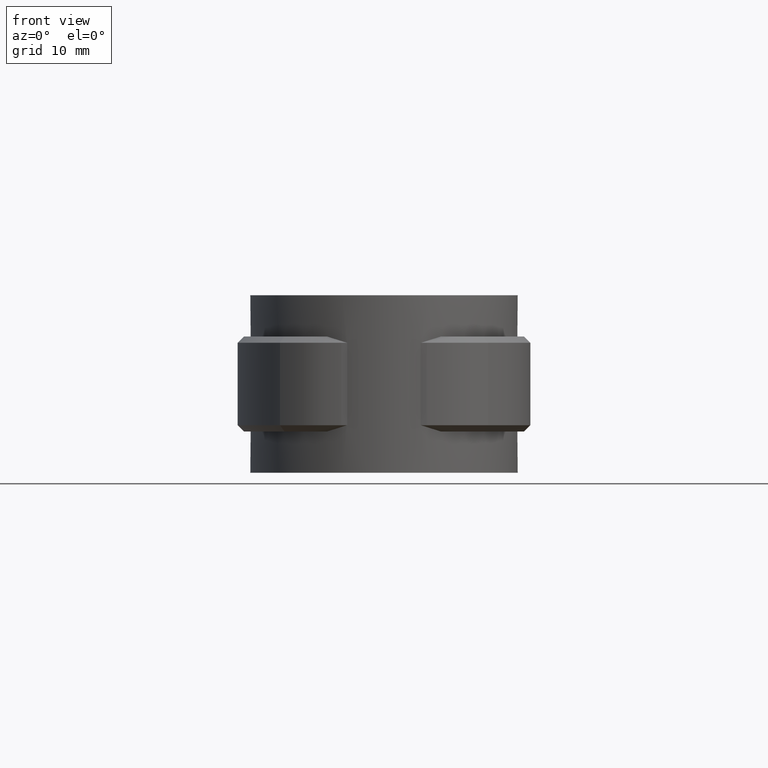
[diagram: clean part render]
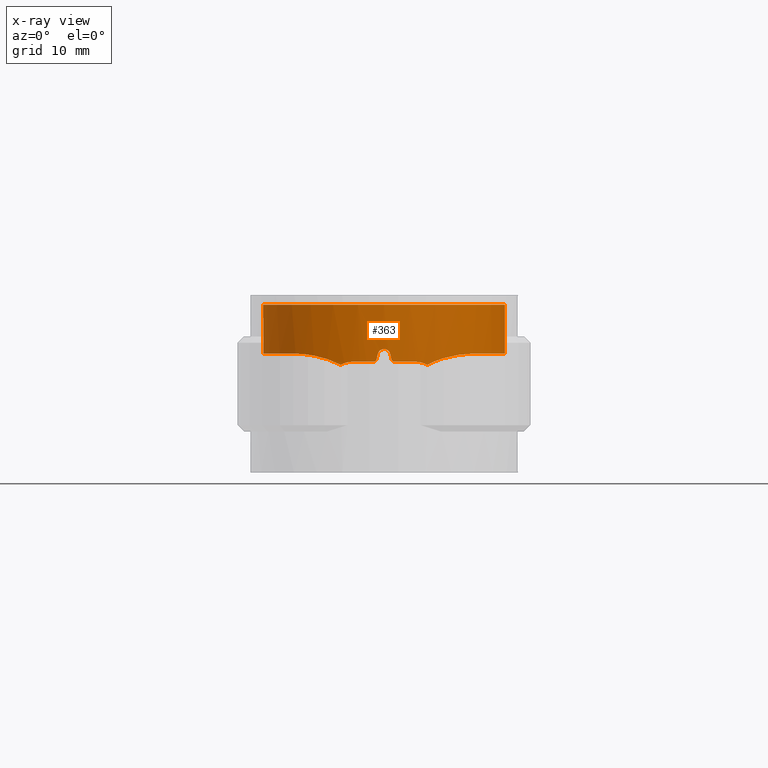
[diagram: x-ray — body ghosted, one internal face saturated and labeled with its STEP entity id]
A machine part, front view, then the same camera in x-ray: the body is ghosted and one INTERNAL B-rep face — a face not visible from any outside direction — is saturated and labeled: STEP entity #363.
In plain terms, the highlighted cylindrical surface (partial cylindrical patch) has radius 19.1 mm, axis along (0, 0, -1).
Its self-contained STEP definition (entity closure, byte-faithful):
#363 = ADVANCED_FACE( '', ( #695 ), #696, .T. );
#695 = FACE_OUTER_BOUND( '', #1404, .T. );
#696 = CYLINDRICAL_SURFACE( '', #1405, 19.1000000000000 );
#1404 = EDGE_LOOP( '', ( #2629, #2630, #2631, #2632, #2633, #2634, #2635, #2636, #2637, #2638, #2639, #2640, #2641, #2642, #2643, #2644 ) );
#1405 = AXIS2_PLACEMENT_3D( '', #2645, #2646, #2647 );
#2629 = ORIENTED_EDGE( '', *, *, #6358, .F. );
#2630 = ORIENTED_EDGE( '', *, *, #6359, .F. );
#2631 = ORIENTED_EDGE( '', *, *, #6360, .F. );
#2632 = ORIENTED_EDGE( '', *, *, #6361, .F. );
#2633 = ORIENTED_EDGE( '', *, *, #6362, .F. );
#2634 = ORIENTED_EDGE( '', *, *, #6363, .T. );
#2635 = ORIENTED_EDGE( '', *, *, #6364, .F. );
#2636 = ORIENTED_EDGE( '', *, *, #6365, .F. );
#2637 = ORIENTED_EDGE( '', *, *, #6366, .F. );
#2638 = ORIENTED_EDGE( '', *, *, #6367, .F. );
#2639 = ORIENTED_EDGE( '', *, *, #6368, .F. );
#2640 = ORIENTED_EDGE( '', *, *, #6369, .F. );
#2641 = ORIENTED_EDGE( '', *, *, #6370, .F. );
#2642 = ORIENTED_EDGE( '', *, *, #6371, .F. );
#2643 = ORIENTED_EDGE( '', *, *, #6372, .F. );
#2644 = ORIENTED_EDGE( '', *, *, #6373, .F. );
#2645 = CARTESIAN_POINT( '', ( 0.000000000000000, 0.000000000000000, 0.000000000000000 ) );
#2646 = DIRECTION( '', ( 0.000000000000000, 0.000000000000000, -1.00000000000000 ) );
#2647 = DIRECTION( '', ( 1.00000000000000, -6.12303176911189E-017, 0.000000000000000 ) );
#6358 = EDGE_CURVE( '', #7281, #7282, #7283, .T. );
#6359 = EDGE_CURVE( '', #7284, #7281, #7285, .T. );
#6360 = EDGE_CURVE( '', #7286, #7284, #7287, .T. );
#6361 = EDGE_CURVE( '', #7288, #7286, #7289, .T. );
#6362 = EDGE_CURVE( '', #7290, #7288, #7291, .T. );
#6363 = EDGE_CURVE( '', #7290, #7292, #7293, .T. );
#6364 = EDGE_CURVE( '', #7294, #7292, #7295, .T. );
#6365 = EDGE_CURVE( '', #7296, #7294, #7297, .T. );
#6366 = EDGE_CURVE( '', #7298, #7296, #7299, .T. );
#6367 = EDGE_CURVE( '', #7300, #7298, #7301, .T. );
#6368 = EDGE_CURVE( '', #7302, #7300, #7303, .T. );
#6369 = EDGE_CURVE( '', #7304, #7302, #7305, .T. );
#6370 = EDGE_CURVE( '', #7306, #7304, #7307, .T. );
#6371 = EDGE_CURVE( '', #7308, #7306, #7309, .T. );
#6372 = EDGE_CURVE( '', #7310, #7308, #7311, .T. );
#6373 = EDGE_CURVE( '', #7282, #7310, #7312, .T. );
#7281 = VERTEX_POINT( '', #8817 );
#7282 = VERTEX_POINT( '', #8818 );
#7283 = B_SPLINE_CURVE_WITH_KNOTS( '', 3, ( #8819, #8820, #8821, #8822, #8823, #8824, #8825, #8826 ), .UNSPECIFIED., .F., .F., ( 4, 2, 2, 4 ), ( 4.71809707032661E-016, 0.000994489686253083, 0.00149173452937939, 0.00198897937250569 ), .UNSPECIFIED. );
#7284 = VERTEX_POINT( '', #8827 );
#7285 = B_SPLINE_CURVE_WITH_KNOTS( '', 3, ( #8828, #8829, #8830, #8831, #8832, #8833, #8834, #8835, #8836, #8837, #8838, #8839 ), .UNSPECIFIED., .F., .F., ( 4, 2, 2, 2, 2, 4 ), ( 3.07393783112962E-017, 0.00223644603303480, 0.00335466904955218, 0.00447289206606957, 0.00670933809910433, 0.00894578413213910 ), .UNSPECIFIED. );
#7286 = VERTEX_POINT( '', #8840 );
#7287 = B_SPLINE_CURVE_WITH_KNOTS( '', 3, ( #8841, #8842, #8843, #8844, #8845, #8846, #8847, #8848, #8849, #8850, #8851, #8852, #8853, #8854, #8855, #8856, #8857, #8858, #8859, #8860, #8861, #8862, #8863, #8864, #8865, #8866, #8867, #8868, #8869, #8870, #8871, #8872, #8873, #8874, #8875, #8876 ), .UNSPECIFIED., .F., .F., ( 4, 2, 2, 2, 2, 2, 2, 2, 2, 2, 2, 2, 2, 2, 2, 2, 2, 4 ), ( 2.60208521396521E-018, 0.00475166728882035, 0.00593958411102543, 0.00712750093323051, 0.00950333457764068, 0.0118791682220509, 0.0130670850442559, 0.0142550018664610, 0.0190066691552814, 0.0201945859774865, 0.0213825027996916, 0.0237583364441017, 0.0249462532663068, 0.0261341700885119, 0.0285100037329221, 0.0308858373773323, 0.0332616710217425, 0.0380133383105628 ), .UNSPECIFIED. );
#7288 = VERTEX_POINT( '', #8877 );
#7289 = LINE( '', #8878, #8879 );
#7290 = VERTEX_POINT( '', #8880 );
#7291 = CIRCLE( '', #8881, 19.1000000000000 );
#7292 = VERTEX_POINT( '', #8882 );
#7293 = LINE( '', #8883, #8884 );
#7294 = VERTEX_POINT( '', #8885 );
#7295 = B_SPLINE_CURVE_WITH_KNOTS( '', 3, ( #8886, #8887, #8888, #8889, #8890, #8891, #8892, #8893, #8894, #8895, #8896, #8897, #8898, #8899, #8900, #8901, #8902, #8903, #8904, #8905, #8906, #8907, #8908, #8909, #8910, #8911, #8912, #8913, #8914, #8915, #8916, #8917, #8918, #8919, #8920, #8921 ), .UNSPECIFIED., .F., .F., ( 4, 2, 2, 2, 2, 2, 2, 2, 2, 2, 2, 2, 2, 2, 2, 2, 2, 4 ), ( 1.39857877853494E-017, 0.00475166185448416, 0.00593957731810520, 0.00712749278172624, 0.00950332370896832, 0.0118791546362104, 0.0130670700998314, 0.0142549855634525, 0.0190066474179366, 0.0201945628815577, 0.0213824783451787, 0.0237583092724208, 0.0249462247360418, 0.0261341401996629, 0.0285099711269049, 0.0308858020541470, 0.0332616329813891, 0.0380132948358732 ), .UNSPECIFIED. );
#7296 = VERTEX_POINT( '', #8922 );
#7297 = B_SPLINE_CURVE_WITH_KNOTS( '', 3, ( #8923, #8924, #8925, #8926, #8927, #8928, #8929, #8930, #8931, #8932 ), .UNSPECIFIED., .F., .F., ( 4, 2, 2, 2, 4 ), ( 7.16178228778827E-016, 0.00221732139020092, 0.00443464278040113, 0.00665196417060134, 0.00886928556080155 ), .UNSPECIFIED. );
#7298 = VERTEX_POINT( '', #8933 );
#7299 = B_SPLINE_CURVE_WITH_KNOTS( '', 3, ( #8934, #8935, #8936, #8937, #8938, #8939, #8940, #8941 ), .UNSPECIFIED., .F., .F., ( 4, 2, 2, 4 ), ( 5.20417042793042E-018, 0.000994239728505342, 0.00149135959275801, 0.00198847945701068 ), .UNSPECIFIED. );
#7300 = VERTEX_POINT( '', #8942 );
#7301 = CIRCLE( '', #8943, 19.1000000000000 );
#7302 = VERTEX_POINT( '', #8944 );
#7303 = B_SPLINE_CURVE_WITH_KNOTS( '', 3, ( #8945, #8946, #8947, #8948, #8949, #8950 ), .UNSPECIFIED., .F., .F., ( 4, 2, 4 ), ( 1.78811203067275E-018, 0.000336337775742345, 0.000672675551484689 ), .UNSPECIFIED. );
#7304 = VERTEX_POINT( '', #8951 );
#7305 = ELLIPSE( '', #8952, 87.0111998839010, 19.1000000000000 );
#7306 = VERTEX_POINT( '', #8953 );
#7307 = B_SPLINE_CURVE_WITH_KNOTS( '', 3, ( #8954, #8955, #8956, #8957, #8958, #8959, #8960, #8961, #8962, #8963 ), .UNSPECIFIED., .F., .F., ( 4, 2, 2, 2, 4 ), ( 1.08420217248550E-019, 0.000671676872309648, 0.00134335374461930, 0.00201503061692894, 0.00268670748923859 ), .UNSPECIFIED. );
#7308 = VERTEX_POINT( '', #8964 );
#7309 = ELLIPSE( '', #8965, 87.0111554974908, 19.1000000000000 );
#7310 = VERTEX_POINT( '', #8966 );
#7311 = B_SPLINE_CURVE_WITH_KNOTS( '', 3, ( #8967, #8968, #8969, #8970, #8971, #8972 ), .UNSPECIFIED., .F., .F., ( 4, 2, 4 ), ( 6.10628207734321E-018, 0.000336327118468105, 0.000672654236936203 ), .UNSPECIFIED. );
#7312 = CIRCLE( '', #8973, 19.1000000000000 );
#8817 = CARTESIAN_POINT( '', ( 6.81905526878693, -17.8412579500782, -9.50984315978239 ) );
#8818 = CARTESIAN_POINT( '', ( 5.00000000000001, -18.4339360962329, -9.00000000000000 ) );
#8819 = CARTESIAN_POINT( '', ( 6.81905526878722, -17.8412579500781, -9.50984315978288 ) );
#8820 = CARTESIAN_POINT( '', ( 6.54606797206077, -17.9455956301488, -9.34377194447292 ) );
#8821 = CARTESIAN_POINT( '', ( 6.25697981576428, -18.0489218713347, -9.21811179728009 ) );
#8822 = CARTESIAN_POINT( '', ( 5.79870563454951, -18.1991993573056, -9.08865621529606 ) );
#8823 = CARTESIAN_POINT( '', ( 5.64089061904192, -18.2487782744802, -9.05543422189010 ) );
#8824 = CARTESIAN_POINT( '', ( 5.32286154237689, -18.3440644484210, -9.01122734908739 ) );
#8825 = CARTESIAN_POINT( '', ( 5.16225462618908, -18.3899263347414, -9.00000000000000 ) );
#8826 = CARTESIAN_POINT( '', ( 5.00000000000001, -18.4339360962329, -9.00000000000000 ) );
#8827 = CARTESIAN_POINT( '', ( 13.9497974310064, -13.0465800234959, -7.72134842581987 ) );
#8828 = CARTESIAN_POINT( '', ( 13.9497954125205, -13.0465784000565, -7.72133499237962 ) );
#8829 = CARTESIAN_POINT( '', ( 13.4388943300146, -13.5928492580895, -7.73208495331148 ) );
#8830 = CARTESIAN_POINT( '', ( 12.8991848821413, -14.1058136364963, -7.76985655857241 ) );
#8831 = CARTESIAN_POINT( '', ( 12.0473927316735, -14.8259423178300, -7.87181165090635 ) );
#8832 = CARTESIAN_POINT( '', ( 11.7561841678346, -15.0578109392466, -7.91361117780505 ) );
#8833 = CARTESIAN_POINT( '', ( 11.1671884797589, -15.4996592842449, -8.01298898541061 ) );
#8834 = CARTESIAN_POINT( '', ( 10.8685446083009, -15.7103939090100, -8.07063372135174 ) );
#8835 = CARTESIAN_POINT( '', ( 9.96146161010545, -16.3127630187514, -8.27055204157090 ) );
#8836 = CARTESIAN_POINT( '', ( 9.34169265753410, -16.6746458345190, -8.43895228852054 ) );
#8837 = CARTESIAN_POINT( '', ( 8.08185116317142, -17.3203555734521, -8.87947746419391 ) );
#8838 = CARTESIAN_POINT( '', ( 7.43687211988523, -17.6051239697605, -9.15322746837477 ) );
#8839 = CARTESIAN_POINT( '', ( 6.81905526878664, -17.8412579500783, -9.50984315978189 ) );
#8840 = CARTESIAN_POINT( '', ( 6.05609756097560, 18.1144605862815, -7.72310677885711 ) );
#8841 = CARTESIAN_POINT( '', ( 6.05609756097560, 18.1144605862815, -7.72310677885713 ) );
#8842 = CARTESIAN_POINT( '', ( 7.57988499216502, 17.6050219915457, -7.72562044002635 ) );
#8843 = CARTESIAN_POINT( '', ( 9.00816751026751, 16.9170964181711, -7.72756451349261 ) );
#8844 = CARTESIAN_POINT( '', ( 10.6780188819870, 15.8413301154164, -7.72556092751217 ) );
#8845 = CARTESIAN_POINT( '', ( 11.0061283400569, 15.6152236865161, -7.72500832282518 ) );
#8846 = CARTESIAN_POINT( '', ( 11.6503746423613, 15.1406354724747, -7.72378596501516 ) );
#8847 = CARTESIAN_POINT( '', ( 11.9668420762764, 14.8917493817034, -7.72311589650017 ) );
#8848 = CARTESIAN_POINT( '', ( 12.8849139716540, 14.1218634622731, -7.72140964571591 ) );
#8849 = CARTESIAN_POINT( '', ( 13.4598607434121, 13.5745846150423, -7.72102026270238 ) );
#8850 = CARTESIAN_POINT( '', ( 14.5374344637100, 12.4137100786320, -7.72209448719827 ) );
#8851 = CARTESIAN_POINT( '', ( 15.0400601391704, 11.8001131609034, -7.72312996766405 ) );
#8852 = CARTESIAN_POINT( '', ( 15.7386007948681, 10.8289179939538, -7.72407904110368 ) );
#8853 = CARTESIAN_POINT( '', ( 15.9628272010318, 10.4956569109212, -7.72430530797458 ) );
#8854 = CARTESIAN_POINT( '', ( 16.3891020472364, 9.81672044661759, -7.72448466694066 ) );
#8855 = CARTESIAN_POINT( '', ( 16.5905113531249, 9.47222763162374, -7.72443824659079 ) );
#8856 = CARTESIAN_POINT( '', ( 17.5402823297960, 7.72522543402081, -7.72358484488161 ) );
#8857 = CARTESIAN_POINT( '', ( 18.1194790042441, 6.25024218978828, -7.72049880465367 ) );
#8858 = CARTESIAN_POINT( '', ( 18.6122679087687, 4.30745559678047, -7.72188660815229 ) );
#8859 = CARTESIAN_POINT( '', ( 18.6986602107553, 3.91524051238957, -7.72231569395808 ) );
#8860 = CARTESIAN_POINT( '', ( 18.8457733830484, 3.13142580016287, -7.72318230473616 ) );
#8861 = CARTESIAN_POINT( '', ( 18.9067965259002, 2.73867230654702, -7.72362076679008 ) );
#8862 = CARTESIAN_POINT( '', ( 19.0528744824532, 1.55791445645596, -7.72466879871169 ) );
#8863 = CARTESIAN_POINT( '', ( 19.1010789124707, 0.767422245583558, -7.72496423500655 ) );
#8864 = CARTESIAN_POINT( '', ( 19.0994331793958, -0.423308819489141, -7.72453062126617 ) );
#8865 = CARTESIAN_POINT( '', ( 19.0865240286564, -0.821053671581323, -7.72425164256726 ) );
#8866 = CARTESIAN_POINT( '', ( 19.0355145642650, -1.61824407978250, -7.72352294976920 ) );
#8867 = CARTESIAN_POINT( '', ( 18.9971972768681, -2.01904579157393, -7.72307157109592 ) );
#8868 = CARTESIAN_POINT( '', ( 18.8453894194590, -3.20959479807132, -7.72177584465472 ) );
#8869 = CARTESIAN_POINT( '', ( 18.6954236915003, -3.98980160861872, -7.72102212156006 ) );
#8870 = CARTESIAN_POINT( '', ( 18.3008855043446, -5.52403599171066, -7.72185265540329 ) );
#8871 = CARTESIAN_POINT( '', ( 18.0563078995319, -6.27806224219269, -7.72306799754253 ) );
#8872 = CARTESIAN_POINT( '', ( 17.4709619283910, -7.75949803635879, -7.72476429751523 ) );
#8873 = CARTESIAN_POINT( '', ( 17.1277459475978, -8.49031780562762, -7.72522996562816 ) );
#8874 = CARTESIAN_POINT( '', ( 15.9774650379405, -10.5863743418335, -7.72453105418573 ) );
#8875 = CARTESIAN_POINT( '', ( 15.0472731359111, -11.8731220703944, -7.72082047648139 ) );
#8876 = CARTESIAN_POINT( '', ( 13.9497955370358, -13.0465782669210, -7.72131326548411 ) );
#8877 = CARTESIAN_POINT( '', ( 6.05609756097560, 18.1144605862815, 0.000000000000000 ) );
#8878 = CARTESIAN_POINT( '', ( 6.05609756097560, 18.1144605862815, 0.000000000000000 ) );
#8879 = VECTOR( '', #12519, 1000.00000000000 );
#8880 = CARTESIAN_POINT( '', ( -6.05609756097561, 18.1144605862815, 0.000000000000000 ) );
#8881 = AXIS2_PLACEMENT_3D( '', #12520, #12521, #12522 );
#8882 = CARTESIAN_POINT( '', ( -6.05609756097561, 18.1144605862815, -7.72310677885711 ) );
#8883 = CARTESIAN_POINT( '', ( -6.05609756097561, 18.1144605862815, 0.000000000000000 ) );
#8884 = VECTOR( '', #12523, 1000.00000000000 );
#8885 = CARTESIAN_POINT( '', ( -13.9497974301472, -13.0465800259749, -7.72134842667798 ) );
#8886 = CARTESIAN_POINT( '', ( -13.9497955353980, -13.0465782686722, -7.72131326548485 ) );
#8887 = CARTESIAN_POINT( '', ( -15.0472732734732, -11.8731219236042, -7.72082047661699 ) );
#8888 = CARTESIAN_POINT( '', ( -15.9757865363715, -10.5881758973125, -7.72452292923134 ) );
#8889 = CARTESIAN_POINT( '', ( -16.9320892411799, -8.84715663062020, -7.72511284053459 ) );
#8890 = CARTESIAN_POINT( '', ( -17.1129811560793, -8.49211087977323, -7.72507423063643 ) );
#8891 = CARTESIAN_POINT( '', ( -17.4535837350073, -7.76804261366901, -7.72469348565486 ) );
#8892 = CARTESIAN_POINT( '', ( -17.6133931794283, -7.39850594034003, -7.72434985014286 ) );
#8893 = CARTESIAN_POINT( '', ( -18.0542110821537, -6.28438540913559, -7.72307739680722 ) );
#8894 = CARTESIAN_POINT( '', ( -18.2992653219421, -5.52938398895494, -7.72185973902206 ) );
#8895 = CARTESIAN_POINT( '', ( -18.6942030270091, -3.99549393756366, -7.72102104450866 ) );
#8896 = CARTESIAN_POINT( '', ( -18.8440847683854, -3.21660481771217, -7.72176885422366 ) );
#8897 = CARTESIAN_POINT( '', ( -18.9960055579339, -2.02997344091054, -7.72305936436261 ) );
#8898 = CARTESIAN_POINT( '', ( -19.0345281629990, -1.63015492318208, -7.72351063077228 ) );
#8899 = CARTESIAN_POINT( '', ( -19.0861602839631, -0.830152441690548, -7.72424472001693 ) );
#8900 = CARTESIAN_POINT( '', ( -19.0992704085914, -0.431316471629666, -7.72452611141559 ) );
#8901 = CARTESIAN_POINT( '', ( -19.1027704317089, 1.55717258533274, -7.72525813208829 ) );
#8902 = CARTESIAN_POINT( '', ( -18.9098920687541, 3.13001741562258, -7.72273971755297 ) );
#8903 = CARTESIAN_POINT( '', ( -18.4183146746735, 5.07310296927171, -7.72133672829135 ) );
#8904 = CARTESIAN_POINT( '', ( -18.3075583924406, 5.45914905827519, -7.72123823946837 ) );
#8905 = CARTESIAN_POINT( '', ( -18.0637641734349, 6.21847462161075, -7.72154057880611 ) );
#8906 = CARTESIAN_POINT( '', ( -17.9304424085990, 6.59291408347366, -7.72188439477299 ) );
#8907 = CARTESIAN_POINT( '', ( -17.4967582559390, 7.70081650565904, -7.72303686497809 ) );
#8908 = CARTESIAN_POINT( '', ( -17.1628056120640, 8.41892231876096, -7.72392085542420 ) );
#8909 = CARTESIAN_POINT( '', ( -16.5944672309693, 9.46526252631120, -7.72443625319697 ) );
#8910 = CARTESIAN_POINT( '', ( -16.3937541372086, 9.80889151223972, -7.72448437733915 ) );
#8911 = CARTESIAN_POINT( '', ( -15.9693656768383, 10.4856514957131, -7.72431024766380 ) );
#8912 = CARTESIAN_POINT( '', ( -15.7448534904796, 10.8198724512710, -7.72408631708499 ) );
#8913 = CARTESIAN_POINT( '', ( -15.0445462182877, 11.7945679988529, -7.72313845741746 ) );
#8914 = CARTESIAN_POINT( '', ( -14.5412189503640, 12.4092842618232, -7.72210109946144 ) );
#8915 = CARTESIAN_POINT( '', ( -13.4638322857216, 13.5706523290193, -7.72102140274338 ) );
#8916 = CARTESIAN_POINT( '', ( -12.8897690505951, 14.1173004157622, -7.72140321813263 ) );
#8917 = CARTESIAN_POINT( '', ( -11.6697269680504, 15.1413932548400, -7.72366552289723 ) );
#8918 = CARTESIAN_POINT( '', ( -11.0199697963767, 15.6206737265066, -7.72514685761924 ) );
#8919 = CARTESIAN_POINT( '', ( -9.01050185410459, 16.9163111897744, -7.72756921535358 ) );
#8920 = CARTESIAN_POINT( '', ( -7.57988422999647, 17.6050222463569, -7.72562043876906 ) );
#8921 = CARTESIAN_POINT( '', ( -6.05609756097560, 18.1144605862815, -7.72310677885713 ) );
#8922 = CARTESIAN_POINT( '', ( -6.81905526878222, -17.8412579500800, -9.50984315978122 ) );
#8923 = CARTESIAN_POINT( '', ( -6.81905526878372, -17.8412579500794, -9.50984315978358 ) );
#8924 = CARTESIAN_POINT( '', ( -7.43602833051886, -17.6054464720382, -9.15371451971945 ) );
#8925 = CARTESIAN_POINT( '', ( -8.06701439312596, -17.3271989631166, -8.88553044562400 ) );
#8926 = CARTESIAN_POINT( '', ( -9.32433046472120, -16.6842862152086, -8.44418008350912 ) );
#8927 = CARTESIAN_POINT( '', ( -9.95492829264472, -16.3170296208355, -8.27203971808991 ) );
#8928 = CARTESIAN_POINT( '', ( -11.1748348407921, -15.5070667516439, -8.00308063882047 ) );
#8929 = CARTESIAN_POINT( '', ( -11.7677040221829, -15.0626024185382, -7.90519044753568 ) );
#8930 = CARTESIAN_POINT( '', ( -12.9010675715788, -14.1040173385532, -7.76973023202561 ) );
#8931 = CARTESIAN_POINT( '', ( -13.4397614246844, -13.5919221341590, -7.73206670852259 ) );
#8932 = CARTESIAN_POINT( '', ( -13.9497954108749, -13.0465784018161, -7.72133499241425 ) );
#8933 = CARTESIAN_POINT( '', ( -5.00000000000005, -18.4339360962329, -9.00000000000000 ) );
#8934 = CARTESIAN_POINT( '', ( -5.00000000000006, -18.4339360962329, -9.00000000000000 ) );
#8935 = CARTESIAN_POINT( '', ( -5.32461539822026, -18.3458877823716, -9.00000000000000 ) );
#8936 = CARTESIAN_POINT( '', ( -5.63936351103958, -18.2513298483384, -9.04428000316967 ) );
#8937 = CARTESIAN_POINT( '', ( -6.09787903306930, -18.1011529137974, -9.17286035344436 ) );
#8938 = CARTESIAN_POINT( '', ( -6.24918469729650, -18.0494241971066, -9.22663818442963 ) );
#8939 = CARTESIAN_POINT( '', ( -6.54128039419802, -17.9456310569593, -9.35360289695424 ) );
#8940 = CARTESIAN_POINT( '', ( -6.68253995692997, -17.8934350700544, -9.42679437318980 ) );
#8941 = CARTESIAN_POINT( '', ( -6.81905526878072, -17.8412579500806, -9.50984315977886 ) );
#8942 = CARTESIAN_POINT( '', ( -1.65000000000003, -19.0285969004549, -8.99999999999997 ) );
#8943 = AXIS2_PLACEMENT_3D( '', #12524, #12525, #12526 );
#8944 = CARTESIAN_POINT( '', ( -1.16219512100915, -19.0646086374912, -8.60975609337373 ) );
#8945 = CARTESIAN_POINT( '', ( -1.16219512100915, -19.0646086374912, -8.60975609337373 ) );
#8946 = CARTESIAN_POINT( '', ( -1.18715765708161, -19.0630868995849, -8.72070070258704 ) );
#8947 = CARTESIAN_POINT( '', ( -1.24923773707083, -19.0593103406564, -8.81980675290700 ) );
#8948 = CARTESIAN_POINT( '', ( -1.42662763242333, -19.0468537870059, -8.96151006055798 ) );
#8949 = CARTESIAN_POINT( '', ( -1.53670637462591, -19.0384207714867, -8.99999999999994 ) );
#8950 = CARTESIAN_POINT( '', ( -1.65000000000003, -19.0285969004549, -8.99999999999994 ) );
#8951 = CARTESIAN_POINT( '', ( -0.975610000000022, -19.0750671067732, -7.78048800000004 ) );
#8952 = AXIS2_PLACEMENT_3D( '', #12527, #12528, #12529 );
#8953 = CARTESIAN_POINT( '', ( 0.975609757981812, -19.0750671191514, -7.78048781325256 ) );
#8954 = CARTESIAN_POINT( '', ( 0.975609757981811, -19.0750671191514, -7.78048781325256 ) );
#8955 = CARTESIAN_POINT( '', ( 0.925757385009205, -19.0776168591459, -7.55892180128992 ) );
#8956 = CARTESIAN_POINT( '', ( 0.801997831383429, -19.0839791880777, -7.36098161968767 ) );
#8957 = CARTESIAN_POINT( '', ( 0.447436048285923, -19.0955822942172, -7.07731587360206 ) );
#8958 = CARTESIAN_POINT( '', ( 0.227117419891252, -19.1000000160627, -6.99999971248023 ) );
#8959 = CARTESIAN_POINT( '', ( -0.227120121551981, -19.0999999839372, -7.00000028065426 ) );
#8960 = CARTESIAN_POINT( '', ( -0.447488444089584, -19.0955808086857, -7.07734852942236 ) );
#8961 = CARTESIAN_POINT( '', ( -0.801994740210281, -19.0839790600733, -7.36098809107857 ) );
#8962 = CARTESIAN_POINT( '', ( -0.925757662153672, -19.0776168456052, -7.55892194611683 ) );
#8963 = CARTESIAN_POINT( '', ( -0.975610000000020, -19.0750671067732, -7.78048800000004 ) );
#8964 = CARTESIAN_POINT( '', ( 1.16219499999999, -19.0646086448680, -8.60975599999999 ) );
#8965 = AXIS2_PLACEMENT_3D( '', #12530, #12531, #12532 );
#8966 = CARTESIAN_POINT( '', ( 1.64999999999995, -19.0285969004549, -8.99999999999997 ) );
#8967 = CARTESIAN_POINT( '', ( 1.64999999999995, -19.0285969004549, -8.99999999999995 ) );
#8968 = CARTESIAN_POINT( '', ( 1.53670633490443, -19.0384207749310, -9.00000000048620 ) );
#8969 = CARTESIAN_POINT( '', ( 1.42662640035972, -19.0468538504426, -8.96150724820204 ) );
#8970 = CARTESIAN_POINT( '', ( 1.24924883699644, -19.0593095842842, -8.81981751974237 ) );
#8971 = CARTESIAN_POINT( '', ( 1.18715754853016, -19.0630869063613, -8.72070066235752 ) );
#8972 = CARTESIAN_POINT( '', ( 1.16219499999998, -19.0646086448680, -8.60975599999999 ) );
#8973 = AXIS2_PLACEMENT_3D( '', #12533, #12534, #12535 );
#12519 = DIRECTION( '', ( 0.000000000000000, 0.000000000000000, -1.00000000000000 ) );
#12520 = CARTESIAN_POINT( '', ( 0.000000000000000, 0.000000000000000, 0.000000000000000 ) );
#12521 = DIRECTION( '', ( 0.000000000000000, 0.000000000000000, 1.00000000000000 ) );
#12522 = DIRECTION( '', ( 1.00000000000000, 0.000000000000000, 0.000000000000000 ) );
#12523 = DIRECTION( '', ( 0.000000000000000, 0.000000000000000, -1.00000000000000 ) );
#12524 = CARTESIAN_POINT( '', ( 0.000000000000000, 0.000000000000000, -9.00000000000000 ) );
#12525 = DIRECTION( '', ( 6.12303176911189E-017, 0.000000000000000, -1.00000000000000 ) );
#12526 = DIRECTION( '', ( -1.00000000000000, 0.000000000000000, -6.12303176911189E-017 ) );
#12527 = CARTESIAN_POINT( '', ( 0.000000000000000, 0.000000000000000, -3.44443890776446 ) );
#12528 = DIRECTION( '', ( 0.975609806487711, 0.000000000000000, -0.219511971165610 ) );
#12529 = DIRECTION( '', ( 0.219511971165610, 0.000000000000000, 0.975609806487711 ) );
#12530 = CARTESIAN_POINT( '', ( 0.000000000000000, 0.000000000000000, -3.44444212055027 ) );
#12531 = DIRECTION( '', ( -0.975609781292647, 0.000000000000000, -0.219512083143762 ) );
#12532 = DIRECTION( '', ( -0.219512083143762, 0.000000000000000, 0.975609781292647 ) );
#12533 = CARTESIAN_POINT( '', ( 0.000000000000000, 0.000000000000000, -9.00000000000000 ) );
#12534 = DIRECTION( '', ( 6.12303176911189E-017, 0.000000000000000, -1.00000000000000 ) );
#12535 = DIRECTION( '', ( -1.00000000000000, 0.000000000000000, -6.12303176911189E-017 ) );